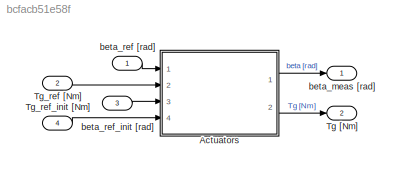
MODEL slx_bcfacb51e58f
KIND model
CONFIG AbsTol = auto
CONFIG EnableMultiTasking = off
CONFIG FixedStep = DT
CONFIG MaxStep = auto
CONFIG MinStep = auto
CONFIG RelTol = 1e-3
CONFIG SampleTimeConstraint = Unconstrained
CONFIG Solver = FixedStepAuto
CONFIG SolverName = FixedStepAuto
CONFIG StartTime = 0.0
CONFIG StopTime = 10.0
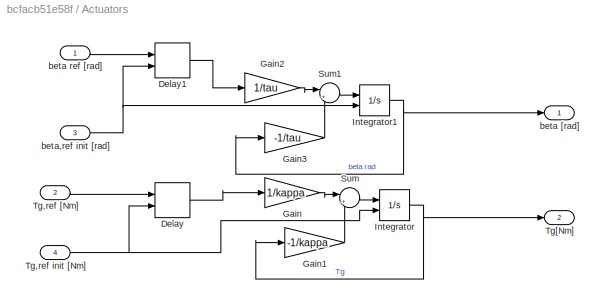
BLOCK [SubSystem] Actuators
  Ports = [4, 2]
  RequestExecContextInheritance = off
BLOCK [Delay] Actuators/Delay
  DelayLength = 1
  InitialConditionSource = Input port
  InputPortMap = u0,p4
  Ports = [2, 1]
BLOCK [Delay] Actuators/Delay1
  DelayLength = 1
  InitialConditionSource = Input port
  InputPortMap = u0,p4
  Ports = [2, 1]
BLOCK [Gain] Actuators/Gain
  Gain = 1/kappa
  OutDataTypeStr = Inherit: Inherit via internal rule
  ParamDataTypeStr = Inherit: Inherit via internal rule
  SaturateOnIntegerOverflow = off
BLOCK [Gain] Actuators/Gain1
  Gain = -1/kappa
  OutDataTypeStr = Inherit: Inherit via internal rule
  ParamDataTypeStr = Inherit: Inherit via internal rule
  SaturateOnIntegerOverflow = off
BLOCK [Gain] Actuators/Gain2
  Gain = 1/tau
  OutDataTypeStr = Inherit: Inherit via internal rule
  ParamDataTypeStr = Inherit: Inherit via internal rule
  SaturateOnIntegerOverflow = off
BLOCK [Gain] Actuators/Gain3
  Gain = -1/tau
  OutDataTypeStr = Inherit: Inherit via internal rule
  ParamDataTypeStr = Inherit: Inherit via internal rule
  SaturateOnIntegerOverflow = off
BLOCK [Integrator] Actuators/Integrator
  InitialConditionSource = external
  Ports = [2, 1]
BLOCK [Integrator] Actuators/Integrator1
  InitialConditionSource = external
  Ports = [2, 1]
BLOCK [Sum] Actuators/Sum
  IconShape = round
  InputSameDT = off
  Inputs = |++
  OutDataTypeStr = Inherit: Inherit via internal rule
  Ports = [2, 1]
  SaturateOnIntegerOverflow = off
BLOCK [Sum] Actuators/Sum1
  IconShape = round
  InputSameDT = off
  Inputs = |++
  OutDataTypeStr = Inherit: Inherit via internal rule
  Ports = [2, 1]
  SaturateOnIntegerOverflow = off
BLOCK [Inport] Actuators/Tg,ref [Nm]
  IconDisplay = Port number
  Port = 2
BLOCK [Inport] Actuators/Tg,ref init [Nm]
  IconDisplay = Port number
  Port = 4
BLOCK [Outport] Actuators/Tg[Nm]
  IconDisplay = Port number
  Port = 2
  VectorParamsAs1DForOutWhenUnconnected = off
BLOCK [Outport] Actuators/beta [rad]
  IconDisplay = Port number
  VectorParamsAs1DForOutWhenUnconnected = off
BLOCK [Inport] Actuators/beta ref [rad]
  IconDisplay = Port number
BLOCK [Inport] Actuators/beta,ref init [rad]
  IconDisplay = Port number
  Port = 3
BLOCK [Outport] Tg  [Nm]
  IconDisplay = Port number
  Port = 2
  VectorParamsAs1DForOutWhenUnconnected = off
BLOCK [Inport] Tg_ref [Nm]
  IconDisplay = Port number
  Port = 2
BLOCK [Inport] Tg_ref_init [Nm]
  IconDisplay = Port number
  Port = 4
BLOCK [Outport] beta_meas [rad] 
  IconDisplay = Port number
  VectorParamsAs1DForOutWhenUnconnected = off
BLOCK [Inport] beta_ref [rad]
  IconDisplay = Port number
BLOCK [Inport] beta_ref_init [rad]
  IconDisplay = Port number
  Port = 3
LINE Actuators/Delay1:1 -> Actuators/Gain2:1
LINE Actuators/Delay:1 -> Actuators/Gain:1
LINE Actuators/Gain1:1 -> Actuators/Sum:2
LINE Actuators/Gain2:1 -> Actuators/Sum1:1
LINE Actuators/Gain3:1 -> Actuators/Sum1:2
LINE Actuators/Gain:1 -> Actuators/Sum:1
NET Actuators/Integrator1:1 -> Actuators/Gain3:1, Actuators/beta [rad]:1
NET Actuators/Integrator:1 -> Actuators/Gain1:1, Actuators/Tg[Nm]:1
LINE Actuators/Sum1:1 -> Actuators/Integrator1:1
LINE Actuators/Sum:1 -> Actuators/Integrator:1
LINE Actuators/Tg,ref [Nm]:1 -> Actuators/Delay:1
NET Actuators/Tg,ref init [Nm]:1 -> Actuators/Delay:2, Actuators/Integrator:2
LINE Actuators/beta ref [rad]:1 -> Actuators/Delay1:1
NET Actuators/beta,ref init [rad]:1 -> Actuators/Delay1:2, Actuators/Integrator1:2
LINE Actuators:1 -> beta_meas [rad] :1
LINE Actuators:2 -> Tg  [Nm]:1
LINE Tg_ref [Nm]:1 -> Actuators:2
LINE Tg_ref_init [Nm]:1 -> Actuators:4
LINE beta_ref [rad]:1 -> Actuators:1
LINE beta_ref_init [rad]:1 -> Actuators:3
note: NET lines group one-source signal fan-out (src -> all destinations, sorted); 1:1 wires keep LINE
